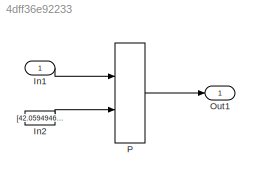
MODEL slx_4dff36e92233
KIND model
CONFIG AbsTol = auto
CONFIG EnableMultiTasking = off
CONFIG FixedStep = auto
CONFIG MaxStep = auto
CONFIG MinStep = auto
CONFIG RelTol = 1e-3
CONFIG SampleTimeConstraint = Unconstrained
CONFIG Solver = FixedStepDiscrete
CONFIG SolverName = FixedStepDiscrete
CONFIG StartTime = 0.0
CONFIG StopTime = 10.0
BLOCK [Inport] In1
  IconDisplay = Port number
  OutDataTypeStr = double
  PortDimensions = 1
BLOCK [Constant] In2
  Value = [42.0594946919657 43.5594946919657 45.0594946919657 46.5594946919657 48.0594946919657 49.5594946919657 51.0594946919657 52.5594946919657 54.0594946919657 55.5594946919657 57.0594946919657 58.5594946919657 60.0594946919657 61.5594946919657 63.0594946919657 64.5594946919657 66.0594946919657 67.5594946919657 69.0594946919657 70.5594946919657 72.0594946919657 73.5594946919657 75.0594946919657 76.55949...<+43ch>
BLOCK [Outport] Out1
  IconDisplay = Port number
BLOCK [PreLookup] P
  BeginIndexSearchUsingPreviousIndexResult = on
  BreakpointsData = [10:10:110]
  BreakpointsDataSource = Input port
  FractionDataTypeStr = double
  IndexDataTypeStr = int16
  InputPortMap = u0,p1
  OutputSelection = Index only
  Ports = [2, 1]
  RndMeth = Zero
LINE In1:1 -> P:1
LINE In2:1 -> P:2
LINE P:1 -> Out1:1
